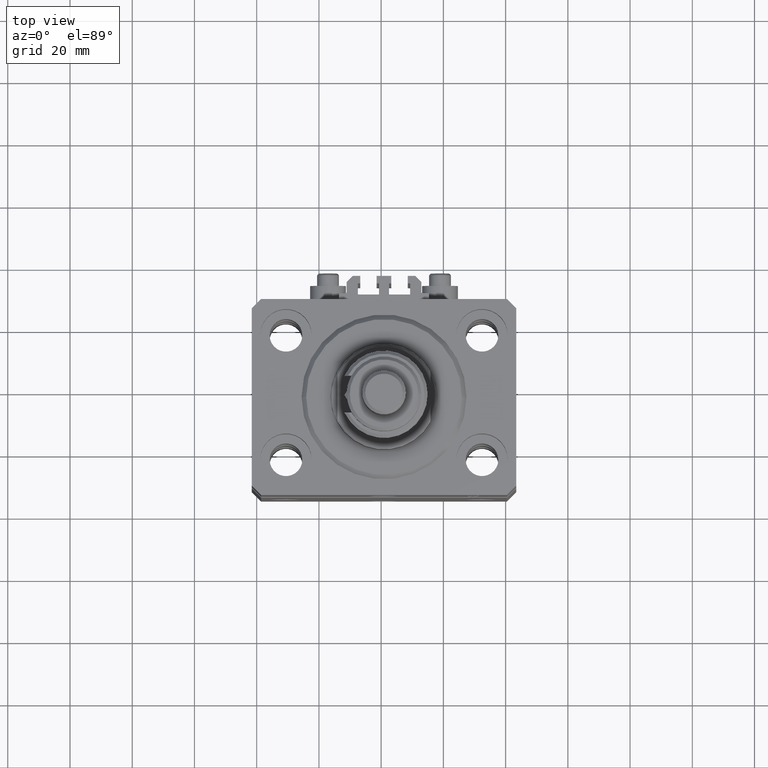
[diagram: clean part render]
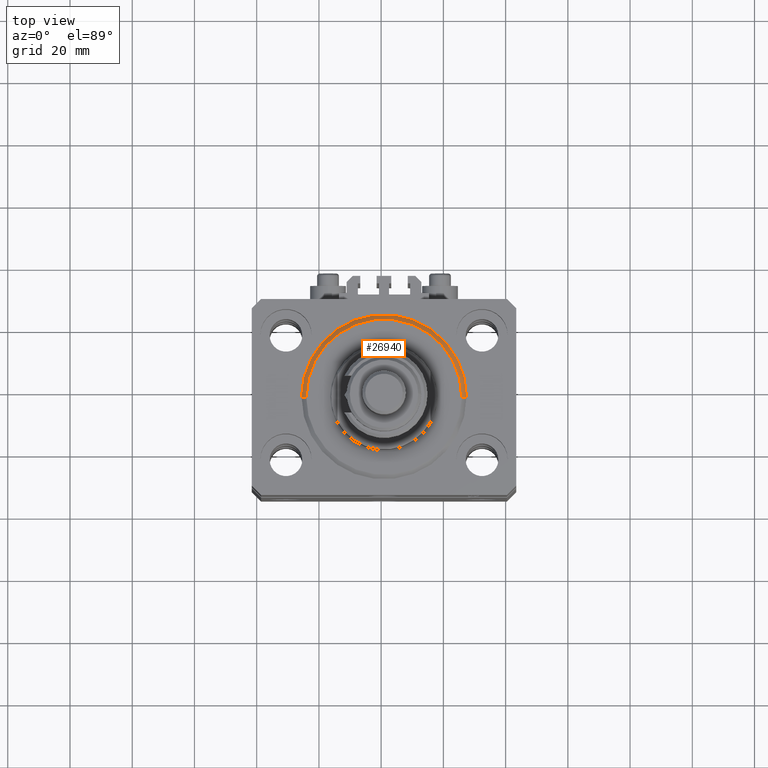
[diagram: same view with one face highlighted and labeled with its STEP entity id]
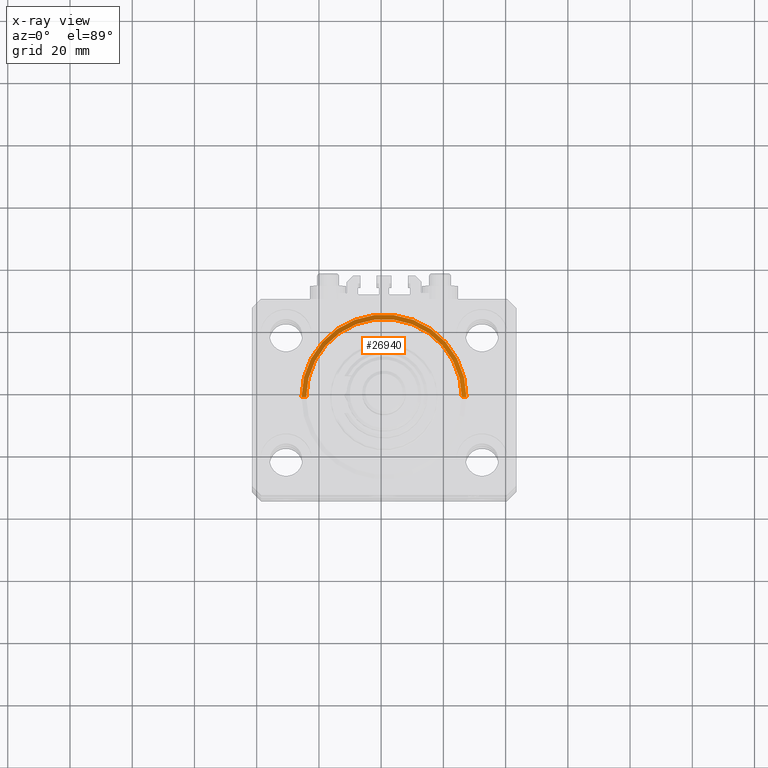
[diagram: x-ray of the same camera — body ghosted, the highlighted face saturated]
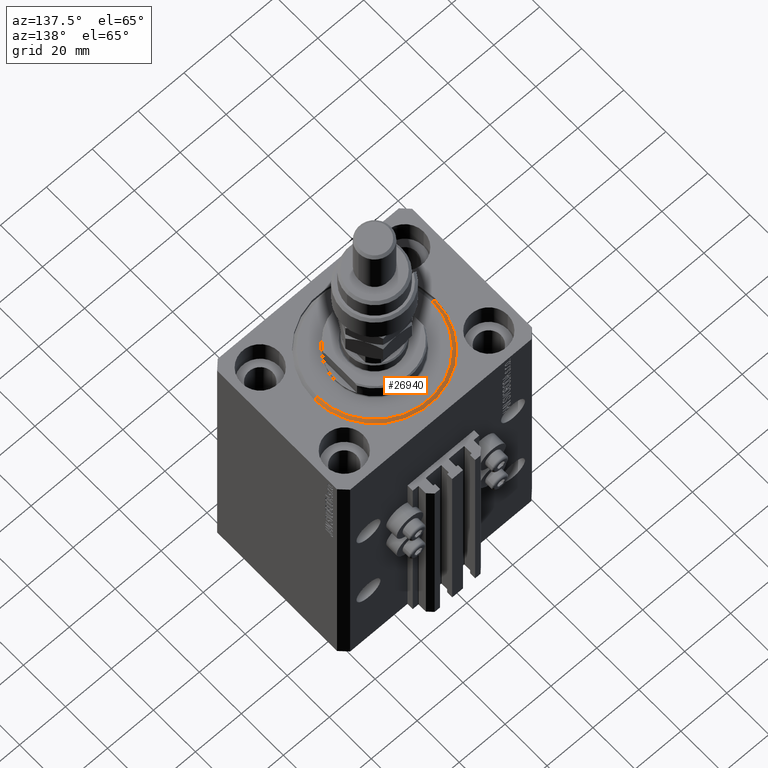
[diagram: same view with one face highlighted and labeled with its STEP entity id]
A machine part, top view. The second image highlights one B-rep face of the part: STEP entity #26940.
The next image is the same camera in x-ray: the body ghosted, the highlighted face saturated — about 0% of this face is hidden behind the body in this view.
A second angle (auxiliary view) of the same face is appended — the face is thin or edge-on in the first view.
In plain terms, the highlighted conical surface has half-angle 45 deg.
Its self-contained STEP definition (entity closure, byte-faithful):
#245 = CONICAL_SURFACE ( 'NONE', #10119, 26.50000000000000355, 0.7853981633974495002 ) ;
#2548 = DIRECTION ( 'NONE',  ( 1.000000000000000000, 0.000000000000000000, 0.000000000000000000 ) ) ;
#3037 = EDGE_LOOP ( 'NONE', ( #17187, #13591, #34650, #26642 ) ) ;
#3799 = CIRCLE ( 'NONE', #13704, 24.99999999999998224 ) ;
#4570 = CARTESIAN_POINT ( 'NONE',  ( 0.000000000000000000, 0.000000000000000000, 1.500000000000018652 ) ) ;
#6555 = DIRECTION ( 'NONE',  ( -0.000000000000000000, -0.000000000000000000, 1.000000000000000000 ) ) ;
#7950 = CARTESIAN_POINT ( 'NONE',  ( 26.50000000000000355, 3.245314017740486554E-15, 1.500000000000018652 ) ) ;
#8380 = EDGE_CURVE ( 'NONE', #42997, #32913, #30901, .T. ) ;
#9712 = CARTESIAN_POINT ( 'NONE',  ( 24.99999999999998224, 0.000000000000000000, 0.000000000000000000 ) ) ;
#10119 = AXIS2_PLACEMENT_3D ( 'NONE', #34337, #6555, #37931 ) ;
#12025 = VERTEX_POINT ( 'NONE', #9712 ) ;
#13591 = ORIENTED_EDGE ( 'NONE', *, *, #36322, .T. ) ;
#13594 = EDGE_CURVE ( 'NONE', #25675, #12025, #3799, .T. ) ;
#13704 = AXIS2_PLACEMENT_3D ( 'NONE', #49421, #26752, #2548 ) ;
#17187 = ORIENTED_EDGE ( 'NONE', *, *, #13594, .F. ) ;
#17685 = DIRECTION ( 'NONE',  ( -0.7071067811865483499, 8.659560562354942719E-17, 0.7071067811865466846 ) ) ;
#21034 = CARTESIAN_POINT ( 'NONE',  ( -26.50000000000000355, 3.245314017740486554E-15, 1.500000000000018652 ) ) ;
#22748 = FACE_OUTER_BOUND ( 'NONE', #3037, .T. ) ;
#25675 = VERTEX_POINT ( 'NONE', #43116 ) ;
#26642 = ORIENTED_EDGE ( 'NONE', *, *, #34431, .F. ) ;
#26752 = DIRECTION ( 'NONE',  ( -0.000000000000000000, -0.000000000000000000, -1.000000000000000000 ) ) ;
#26940 = ADVANCED_FACE ( 'NONE', ( #22748 ), #245, .T. ) ;
#29256 = AXIS2_PLACEMENT_3D ( 'NONE', #4570, #31614, #32105 ) ;
#29297 = VECTOR ( 'NONE', #17685, 1000.000000000000000 ) ;
#30901 = CIRCLE ( 'NONE', #29256, 26.50000000000000355 ) ;
#31614 = DIRECTION ( 'NONE',  ( -0.000000000000000000, -0.000000000000000000, 1.000000000000000000 ) ) ;
#32105 = DIRECTION ( 'NONE',  ( 1.000000000000000000, 0.000000000000000000, 0.000000000000000000 ) ) ;
#32913 = VERTEX_POINT ( 'NONE', #47918 ) ;
#33398 = LINE ( 'NONE', #21034, #29297 ) ;
#34337 = CARTESIAN_POINT ( 'NONE',  ( 0.000000000000000000, 0.000000000000000000, 1.500000000000018652 ) ) ;
#34431 = EDGE_CURVE ( 'NONE', #12025, #42997, #40248, .T. ) ;
#34650 = ORIENTED_EDGE ( 'NONE', *, *, #8380, .F. ) ;
#36322 = EDGE_CURVE ( 'NONE', #25675, #32913, #33398, .T. ) ;
#37402 = VECTOR ( 'NONE', #48766, 1000.000000000000000 ) ;
#37931 = DIRECTION ( 'NONE',  ( 1.000000000000000000, 0.000000000000000000, 0.000000000000000000 ) ) ;
#40248 = LINE ( 'NONE', #48006, #37402 ) ;
#42997 = VERTEX_POINT ( 'NONE', #7950 ) ;
#43116 = CARTESIAN_POINT ( 'NONE',  ( -24.99999999999998224, 3.153465507804433615E-15, 0.000000000000000000 ) ) ;
#47918 = CARTESIAN_POINT ( 'NONE',  ( -26.50000000000000355, 0.000000000000000000, 1.500000000000018652 ) ) ;
#48006 = CARTESIAN_POINT ( 'NONE',  ( 26.50000000000000355, 0.000000000000000000, 1.500000000000018652 ) ) ;
#48766 = DIRECTION ( 'NONE',  ( 0.7071067811865483499, 0.000000000000000000, 0.7071067811865466846 ) ) ;
#49421 = CARTESIAN_POINT ( 'NONE',  ( 0.000000000000000000, 0.000000000000000000, 0.000000000000000000 ) ) ;